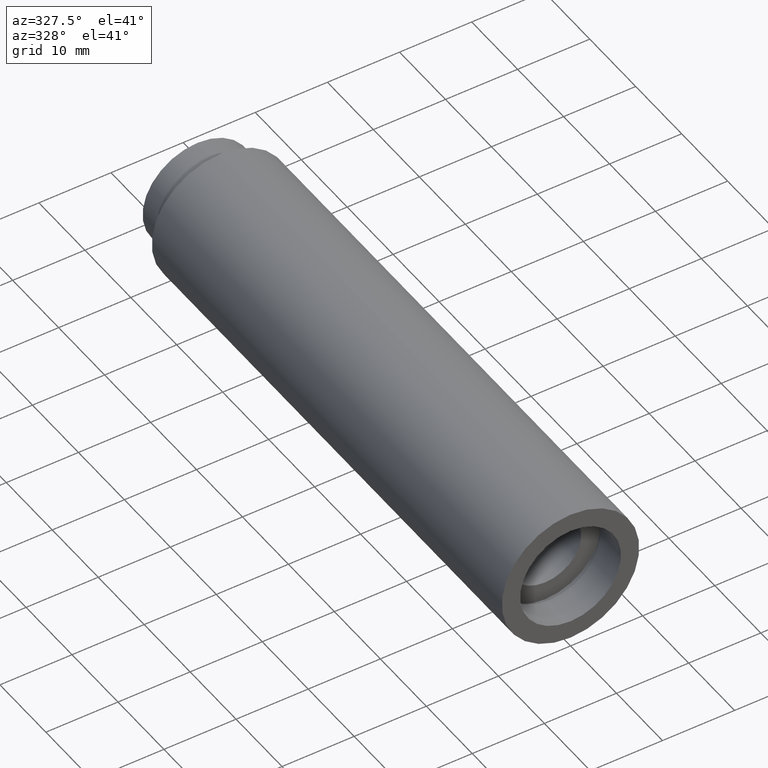
[diagram: clean part render]
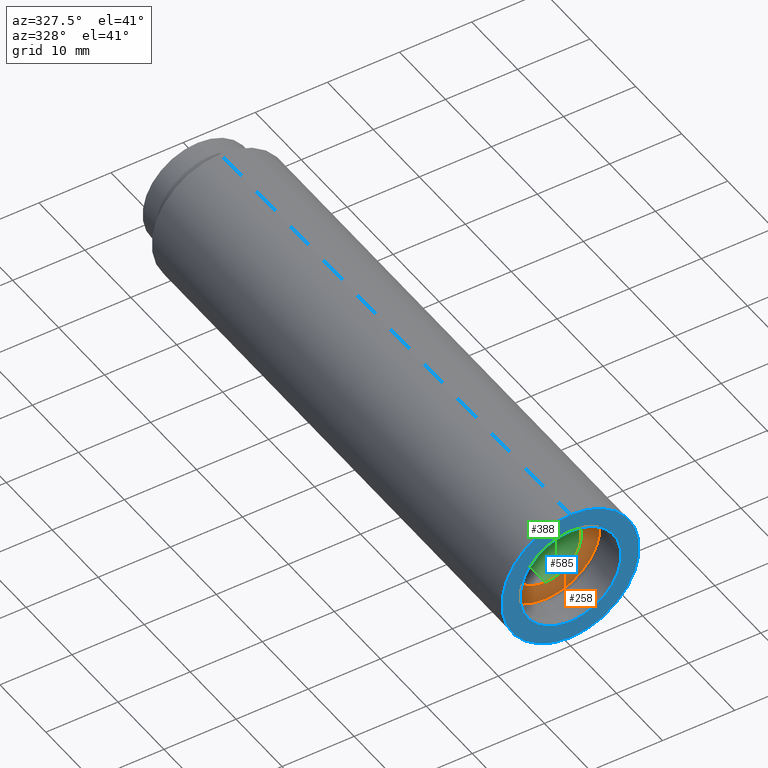
[diagram: same view with three faces highlighted in distinct colors, each labeled with its STEP entity id]
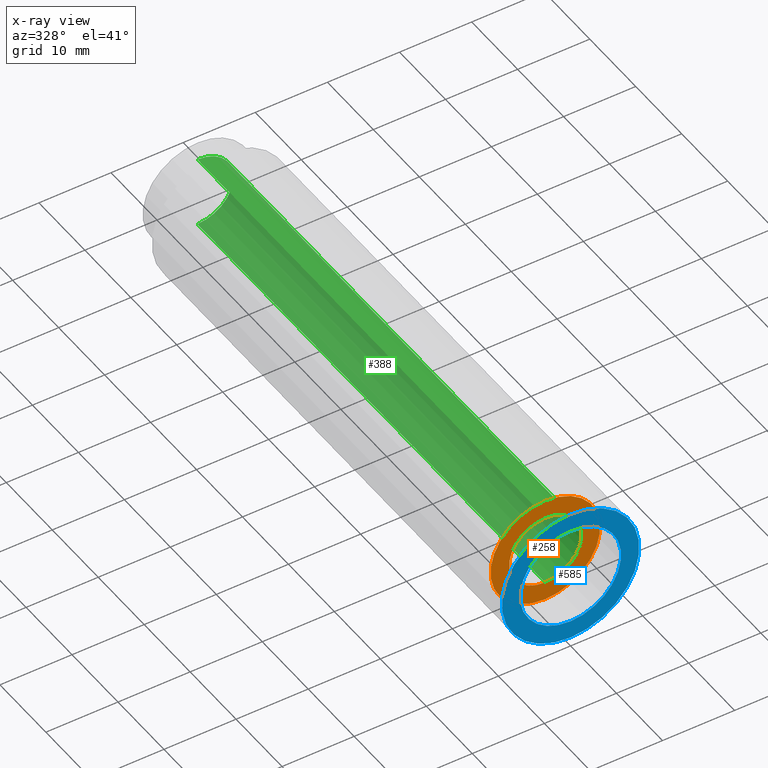
[diagram: x-ray of the same camera — body ghosted, the three highlighted faces saturated]
A machine part, auxiliary view with three faces highlighted in distinct colors.
The next image is the same camera in x-ray (body ghosted, the three faces saturated) — at least one of them is partly hidden behind the body in this view.
Their STEP definitions:

[orange] entity #258 — the highlighted planar face has unit normal (-0, 1, 0).
#3 = FACE_OUTER_BOUND ( 'NONE', #488, .T. ) ;
#23 = VERTEX_POINT ( 'NONE', #267 ) ;
#43 = ORIENTED_EDGE ( 'NONE', *, *, #468, .F. ) ;
#52 = CARTESIAN_POINT ( 'NONE',  ( 6.123233995736789000E-016, 5.499999999999976900, -5.000000000000019500 ) ) ;
#78 = CARTESIAN_POINT ( 'NONE',  ( 9.307315673519909100E-016, 5.499999999999976900, -7.600000000000020100 ) ) ;
#91 = EDGE_CURVE ( 'NONE', #364, #229, #458, .T. ) ;
#92 = CARTESIAN_POINT ( 'NONE',  ( 7.600000000000020100, 5.499999999999984000, 0.0000000000000000000 ) ) ;
#95 = DIRECTION ( 'NONE',  ( 0.0000000000000000000, 0.0000000000000000000, 1.000000000000000000 ) ) ;
#103 = AXIS2_PLACEMENT_3D ( 'NONE', #92, #287, #245 ) ;
#109 = VERTEX_POINT ( 'NONE', #78 ) ;
#110 = ORIENTED_EDGE ( 'NONE', *, *, #91, .T. ) ;
#129 = AXIS2_PLACEMENT_3D ( 'NONE', #500, #289, #330 ) ;
#137 = AXIS2_PLACEMENT_3D ( 'NONE', #430, #239, #570 ) ;
#141 = EDGE_LOOP ( 'NONE', ( #253, #110 ) ) ;
#148 = AXIS2_PLACEMENT_3D ( 'NONE', #153, #490, #95 ) ;
#149 = CIRCLE ( 'NONE', #148, 7.600000000000020100 ) ;
#153 = CARTESIAN_POINT ( 'NONE',  ( 0.0000000000000000000, 5.499999999999976900, 0.0000000000000000000 ) ) ;
#229 = VERTEX_POINT ( 'NONE', #566 ) ;
#239 = DIRECTION ( 'NONE',  ( -0.0000000000000000000, 1.000000000000000000, -0.0000000000000000000 ) ) ;
#245 = DIRECTION ( 'NONE',  ( 0.0000000000000000000, 0.0000000000000000000, 1.000000000000000000 ) ) ;
#253 = ORIENTED_EDGE ( 'NONE', *, *, #432, .T. ) ;
#258 = ADVANCED_FACE ( 'NONE', ( #3, #506 ), #531, .F. ) ;
#267 = CARTESIAN_POINT ( 'NONE',  ( 0.0000000000000000000, 5.499999999999976900, 7.600000000000020100 ) ) ;
#287 = DIRECTION ( 'NONE',  ( -0.0000000000000000000, 1.000000000000000000, 0.0000000000000000000 ) ) ;
#289 = DIRECTION ( 'NONE',  ( -0.0000000000000000000, 1.000000000000000000, -0.0000000000000000000 ) ) ;
#296 = CIRCLE ( 'NONE', #129, 5.000000000000019500 ) ;
#330 = DIRECTION ( 'NONE',  ( 0.0000000000000000000, 0.0000000000000000000, 1.000000000000000000 ) ) ;
#334 = EDGE_CURVE ( 'NONE', #23, #109, #149, .T. ) ;
#343 = ORIENTED_EDGE ( 'NONE', *, *, #334, .F. ) ;
#353 = DIRECTION ( 'NONE',  ( 0.0000000000000000000, 0.0000000000000000000, 1.000000000000000000 ) ) ;
#364 = VERTEX_POINT ( 'NONE', #52 ) ;
#430 = CARTESIAN_POINT ( 'NONE',  ( 0.0000000000000000000, 5.499999999999976900, 0.0000000000000000000 ) ) ;
#432 = EDGE_CURVE ( 'NONE', #229, #364, #296, .T. ) ;
#458 = CIRCLE ( 'NONE', #503, 5.000000000000019500 ) ;
#468 = EDGE_CURVE ( 'NONE', #109, #23, #494, .T. ) ;
#488 = EDGE_LOOP ( 'NONE', ( #343, #43 ) ) ;
#490 = DIRECTION ( 'NONE',  ( -0.0000000000000000000, 1.000000000000000000, -0.0000000000000000000 ) ) ;
#494 = CIRCLE ( 'NONE', #137, 7.600000000000020100 ) ;
#500 = CARTESIAN_POINT ( 'NONE',  ( 0.0000000000000000000, 5.499999999999976900, 0.0000000000000000000 ) ) ;
#503 = AXIS2_PLACEMENT_3D ( 'NONE', #511, #514, #353 ) ;
#506 = FACE_BOUND ( 'NONE', #141, .T. ) ;
#511 = CARTESIAN_POINT ( 'NONE',  ( 0.0000000000000000000, 5.499999999999976900, 0.0000000000000000000 ) ) ;
#514 = DIRECTION ( 'NONE',  ( -0.0000000000000000000, 1.000000000000000000, -0.0000000000000000000 ) ) ;
#531 = PLANE ( 'NONE',  #103 ) ;
#566 = CARTESIAN_POINT ( 'NONE',  ( 0.0000000000000000000, 5.499999999999976900, 5.000000000000019500 ) ) ;
#570 = DIRECTION ( 'NONE',  ( 0.0000000000000000000, 0.0000000000000000000, 1.000000000000000000 ) ) ;

[blue] entity #585 — the highlighted planar face has unit normal (-0, 1, 0).
#11 = DIRECTION ( 'NONE',  ( 0.0000000000000000000, 0.0000000000000000000, 1.000000000000000000 ) ) ;
#19 = DIRECTION ( 'NONE',  ( 0.0000000000000000000, 0.0000000000000000000, 1.000000000000000000 ) ) ;
#37 = EDGE_LOOP ( 'NONE', ( #269, #55 ) ) ;
#42 = AXIS2_PLACEMENT_3D ( 'NONE', #363, #136, #473 ) ;
#55 = ORIENTED_EDGE ( 'NONE', *, *, #555, .F. ) ;
#65 = DIRECTION ( 'NONE',  ( -0.0000000000000000000, 1.000000000000000000, -0.0000000000000000000 ) ) ;
#99 = DIRECTION ( 'NONE',  ( 0.0000000000000000000, 0.0000000000000000000, 1.000000000000000000 ) ) ;
#111 = CIRCLE ( 'NONE', #467, 7.000000000000019500 ) ;
#112 = DIRECTION ( 'NONE',  ( -0.0000000000000000000, 1.000000000000000000, 0.0000000000000000000 ) ) ;
#136 = DIRECTION ( 'NONE',  ( -0.0000000000000000000, 1.000000000000000000, -0.0000000000000000000 ) ) ;
#156 = CIRCLE ( 'NONE', #196, 9.525000000000019900 ) ;
#167 = CARTESIAN_POINT ( 'NONE',  ( 0.0000000000000000000, -2.775557561562891400E-014, 0.0000000000000000000 ) ) ;
#190 = CARTESIAN_POINT ( 'NONE',  ( 0.0000000000000000000, -2.775557561562891400E-014, 0.0000000000000000000 ) ) ;
#196 = AXIS2_PLACEMENT_3D ( 'NONE', #167, #65, #19 ) ;
#205 = VERTEX_POINT ( 'NONE', #527 ) ;
#261 = VERTEX_POINT ( 'NONE', #431 ) ;
#264 = FACE_BOUND ( 'NONE', #611, .T. ) ;
#269 = ORIENTED_EDGE ( 'NONE', *, *, #272, .F. ) ;
#272 = EDGE_CURVE ( 'NONE', #205, #261, #344, .T. ) ;
#285 = DIRECTION ( 'NONE',  ( -0.0000000000000000000, 1.000000000000000000, -0.0000000000000000000 ) ) ;
#294 = PLANE ( 'NONE',  #479 ) ;
#312 = CIRCLE ( 'NONE', #42, 7.000000000000019500 ) ;
#315 = DIRECTION ( 'NONE',  ( -0.0000000000000000000, 1.000000000000000000, -0.0000000000000000000 ) ) ;
#331 = CARTESIAN_POINT ( 'NONE',  ( 8.572527594031495900E-016, -2.775557561562891400E-014, -7.000000000000019500 ) ) ;
#344 = CIRCLE ( 'NONE', #577, 9.525000000000019900 ) ;
#363 = CARTESIAN_POINT ( 'NONE',  ( 0.0000000000000000000, -2.775557561562891400E-014, 0.0000000000000000000 ) ) ;
#368 = CARTESIAN_POINT ( 'NONE',  ( 0.0000000000000000000, -2.775557561562891400E-014, 0.0000000000000000000 ) ) ;
#421 = FACE_OUTER_BOUND ( 'NONE', #37, .T. ) ;
#431 = CARTESIAN_POINT ( 'NONE',  ( 1.166476076187856400E-015, -2.775557561562891400E-014, -9.525000000000019900 ) ) ;
#467 = AXIS2_PLACEMENT_3D ( 'NONE', #190, #315, #522 ) ;
#473 = DIRECTION ( 'NONE',  ( 0.0000000000000000000, 0.0000000000000000000, 1.000000000000000000 ) ) ;
#479 = AXIS2_PLACEMENT_3D ( 'NONE', #496, #112, #11 ) ;
#483 = EDGE_CURVE ( 'NONE', #512, #602, #111, .T. ) ;
#493 = EDGE_CURVE ( 'NONE', #602, #512, #312, .T. ) ;
#496 = CARTESIAN_POINT ( 'NONE',  ( 7.000000000000019500, -1.650046791174882700E-014, 0.0000000000000000000 ) ) ;
#512 = VERTEX_POINT ( 'NONE', #623 ) ;
#522 = DIRECTION ( 'NONE',  ( 0.0000000000000000000, 0.0000000000000000000, 1.000000000000000000 ) ) ;
#527 = CARTESIAN_POINT ( 'NONE',  ( 0.0000000000000000000, -2.775557561562891400E-014, 9.525000000000019900 ) ) ;
#529 = ORIENTED_EDGE ( 'NONE', *, *, #493, .T. ) ;
#555 = EDGE_CURVE ( 'NONE', #261, #205, #156, .T. ) ;
#577 = AXIS2_PLACEMENT_3D ( 'NONE', #368, #285, #99 ) ;
#578 = ORIENTED_EDGE ( 'NONE', *, *, #483, .T. ) ;
#585 = ADVANCED_FACE ( 'NONE', ( #421, #264 ), #294, .F. ) ;
#602 = VERTEX_POINT ( 'NONE', #331 ) ;
#611 = EDGE_LOOP ( 'NONE', ( #578, #529 ) ) ;
#623 = CARTESIAN_POINT ( 'NONE',  ( 0.0000000000000000000, -2.775557561562891400E-014, 7.000000000000019500 ) ) ;

[green] entity #388 — the highlighted cylindrical surface (partial cylindrical patch) has radius 5 mm, axis along (-0, 1, -0).
#22 = LINE ( 'NONE', #193, #329 ) ;
#44 = CIRCLE ( 'NONE', #59, 5.000000000000018700 ) ;
#52 = CARTESIAN_POINT ( 'NONE',  ( 6.123233995736789000E-016, 5.499999999999976900, -5.000000000000019500 ) ) ;
#59 = AXIS2_PLACEMENT_3D ( 'NONE', #463, #407, #76 ) ;
#74 = EDGE_LOOP ( 'NONE', ( #592, #516, #433, #325 ) ) ;
#76 = DIRECTION ( 'NONE',  ( 0.0000000000000000000, 0.0000000000000000000, 1.000000000000000000 ) ) ;
#80 = EDGE_CURVE ( 'NONE', #192, #221, #44, .T. ) ;
#81 = DIRECTION ( 'NONE',  ( -0.0000000000000000000, 1.000000000000000000, -0.0000000000000000000 ) ) ;
#117 = LINE ( 'NONE', #475, #132 ) ;
#129 = AXIS2_PLACEMENT_3D ( 'NONE', #500, #289, #330 ) ;
#132 = VECTOR ( 'NONE', #241, 1000.000000000000000 ) ;
#165 = DIRECTION ( 'NONE',  ( 0.0000000000000000000, 0.0000000000000000000, 1.000000000000000000 ) ) ;
#192 = VERTEX_POINT ( 'NONE', #428 ) ;
#193 = CARTESIAN_POINT ( 'NONE',  ( 6.123233995736788000E-016, 161.3761669434274500, -5.000000000000018700 ) ) ;
#203 = EDGE_CURVE ( 'NONE', #364, #221, #22, .T. ) ;
#221 = VERTEX_POINT ( 'NONE', #518 ) ;
#229 = VERTEX_POINT ( 'NONE', #566 ) ;
#241 = DIRECTION ( 'NONE',  ( -0.0000000000000000000, 1.000000000000000000, -0.0000000000000000000 ) ) ;
#254 = EDGE_CURVE ( 'NONE', #229, #192, #117, .T. ) ;
#289 = DIRECTION ( 'NONE',  ( -0.0000000000000000000, 1.000000000000000000, -0.0000000000000000000 ) ) ;
#296 = CIRCLE ( 'NONE', #129, 5.000000000000019500 ) ;
#325 = ORIENTED_EDGE ( 'NONE', *, *, #80, .T. ) ;
#329 = VECTOR ( 'NONE', #81, 1000.000000000000000 ) ;
#330 = DIRECTION ( 'NONE',  ( 0.0000000000000000000, 0.0000000000000000000, 1.000000000000000000 ) ) ;
#364 = VERTEX_POINT ( 'NONE', #52 ) ;
#388 = ADVANCED_FACE ( 'NONE', ( #462 ), #414, .F. ) ;
#407 = DIRECTION ( 'NONE',  ( -0.0000000000000000000, 1.000000000000000000, -0.0000000000000000000 ) ) ;
#414 = CYLINDRICAL_SURFACE ( 'NONE', #535, 5.000000000000018700 ) ;
#428 = CARTESIAN_POINT ( 'NONE',  ( 0.0000000000000000000, 81.19999999999998900, 5.000000000000018700 ) ) ;
#432 = EDGE_CURVE ( 'NONE', #229, #364, #296, .T. ) ;
#433 = ORIENTED_EDGE ( 'NONE', *, *, #254, .T. ) ;
#462 = FACE_OUTER_BOUND ( 'NONE', #74, .T. ) ;
#463 = CARTESIAN_POINT ( 'NONE',  ( 0.0000000000000000000, 81.19999999999998900, 0.0000000000000000000 ) ) ;
#475 = CARTESIAN_POINT ( 'NONE',  ( 0.0000000000000000000, 161.3761669434274500, 5.000000000000018700 ) ) ;
#500 = CARTESIAN_POINT ( 'NONE',  ( 0.0000000000000000000, 5.499999999999976900, 0.0000000000000000000 ) ) ;
#516 = ORIENTED_EDGE ( 'NONE', *, *, #432, .F. ) ;
#518 = CARTESIAN_POINT ( 'NONE',  ( 6.123233995736788000E-016, 81.19999999999998900, -5.000000000000018700 ) ) ;
#533 = DIRECTION ( 'NONE',  ( -0.0000000000000000000, 1.000000000000000000, -0.0000000000000000000 ) ) ;
#535 = AXIS2_PLACEMENT_3D ( 'NONE', #579, #533, #165 ) ;
#566 = CARTESIAN_POINT ( 'NONE',  ( 0.0000000000000000000, 5.499999999999976900, 5.000000000000019500 ) ) ;
#579 = CARTESIAN_POINT ( 'NONE',  ( 0.0000000000000000000, 161.3761669434274500, 0.0000000000000000000 ) ) ;
#592 = ORIENTED_EDGE ( 'NONE', *, *, #203, .F. ) ;